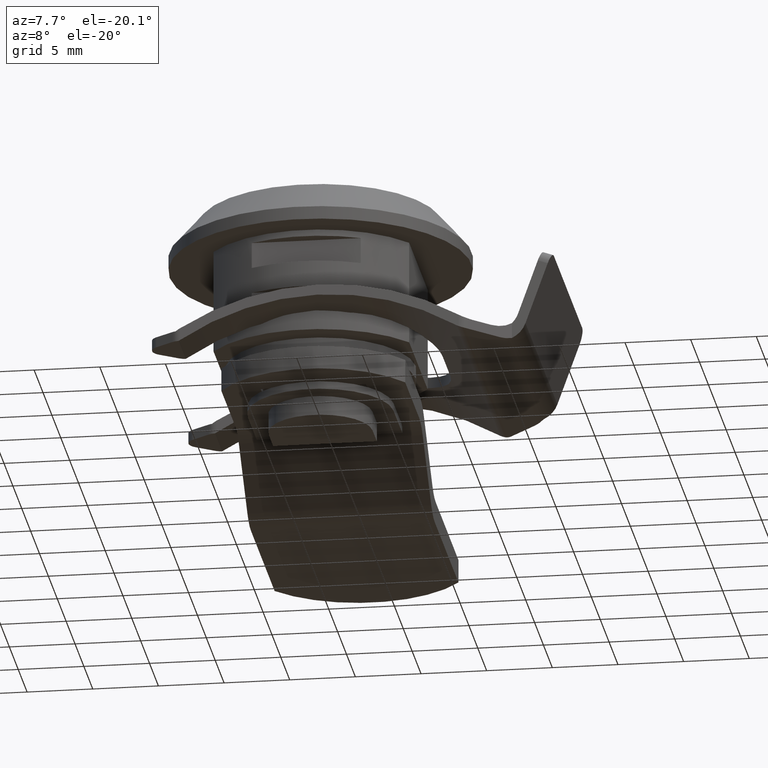
[diagram: clean part render]
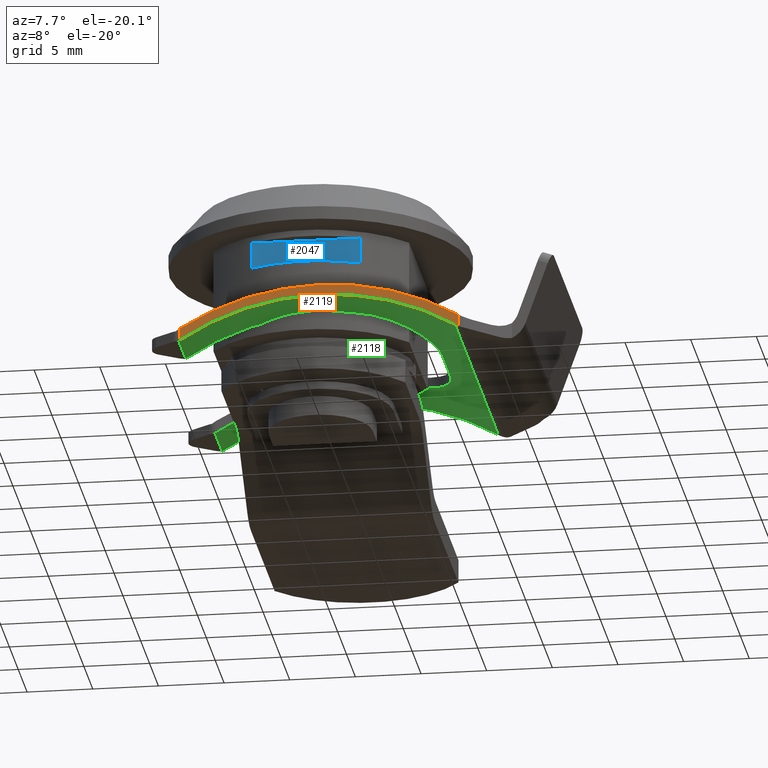
[diagram: same view with three faces highlighted in distinct colors, each labeled with its STEP entity id]
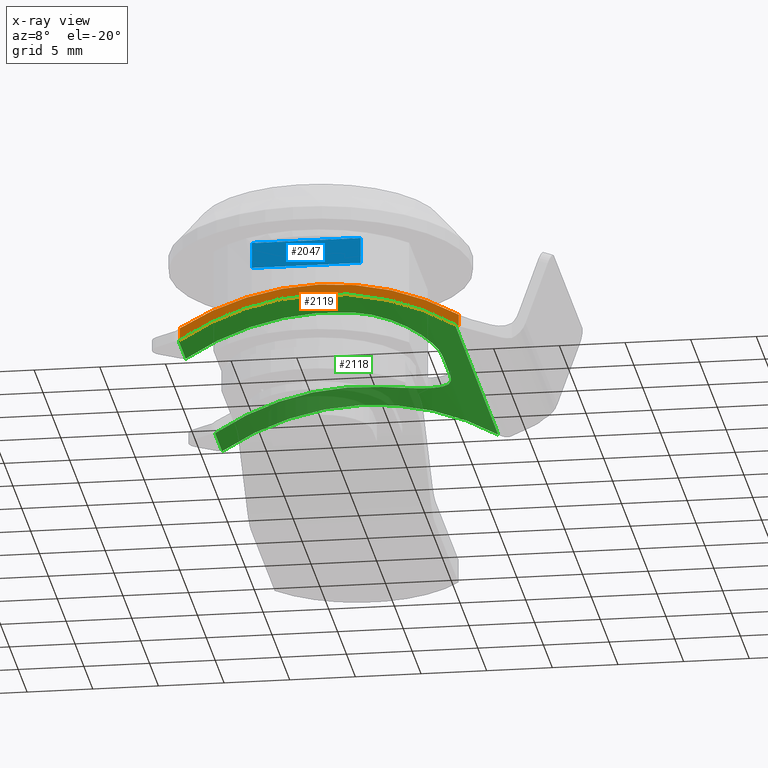
[diagram: x-ray of the same camera — body ghosted, the three highlighted faces saturated]
A machine part, auxiliary view with three faces highlighted in distinct colors.
The next image is the same camera in x-ray (body ghosted, the three faces saturated) — at least one of them is partly hidden behind the body in this view.
Their STEP definitions:

[orange] entity #2119 — the highlighted planar face has unit normal (0, 1, 0).
#203=FACE_OUTER_BOUND('',#340,.T.);
#340=EDGE_LOOP('',(#1748,#1749,#1750,#1751,#1752,#1753));
#522=LINE('',#3492,#719);
#523=LINE('',#3497,#720);
#719=VECTOR('',#2805,0.909079785206521);
#720=VECTOR('',#2810,0.944605690388034);
#819=CIRCLE('',#2295,2.);
#821=CIRCLE('',#2298,19.656640625);
#825=CIRCLE('',#2303,2.);
#826=CIRCLE('',#2304,20.456640625);
#982=VERTEX_POINT('',#3411);
#983=VERTEX_POINT('',#3420);
#986=VERTEX_POINT('',#3435);
#998=VERTEX_POINT('',#3491);
#999=VERTEX_POINT('',#3493);
#1000=VERTEX_POINT('',#3495);
#1244=EDGE_CURVE('',#982,#983,#819,.T.);
#1248=EDGE_CURVE('',#986,#983,#821,.T.);
#1261=EDGE_CURVE('',#998,#982,#522,.T.);
#1262=EDGE_CURVE('',#999,#998,#825,.T.);
#1263=EDGE_CURVE('',#1000,#999,#826,.T.);
#1264=EDGE_CURVE('',#986,#1000,#523,.T.);
#1748=ORIENTED_EDGE('',*,*,#1244,.F.);
#1749=ORIENTED_EDGE('',*,*,#1261,.F.);
#1750=ORIENTED_EDGE('',*,*,#1262,.F.);
#1751=ORIENTED_EDGE('',*,*,#1263,.F.);
#1752=ORIENTED_EDGE('',*,*,#1264,.F.);
#1753=ORIENTED_EDGE('',*,*,#1248,.T.);
#2015=PLANE('',#2302);
#2119=ADVANCED_FACE('',(#203),#2015,.F.);
#2295=AXIS2_PLACEMENT_3D('',#3421,#2785,#2786);
#2298=AXIS2_PLACEMENT_3D('',#3436,#2792,#2793);
#2302=AXIS2_PLACEMENT_3D('',#3490,#2803,#2804);
#2303=AXIS2_PLACEMENT_3D('',#3494,#2806,#2807);
#2304=AXIS2_PLACEMENT_3D('',#3496,#2808,#2809);
#2785=DIRECTION('center_axis',(-1.,0.,0.));
#2786=DIRECTION('ref_axis',(0.,-0.27180938406112,-0.962351109905483));
#2792=DIRECTION('center_axis',(-1.,0.,0.));
#2793=DIRECTION('ref_axis',(0.,0.546888972794658,0.837205142982055));
#2803=DIRECTION('center_axis',(-1.,0.,0.));
#2804=DIRECTION('ref_axis',(0.,0.,1.));
#2805=DIRECTION('',(0.,3.33066907387547E-16,-1.));
#2806=DIRECTION('center_axis',(1.,0.,0.));
#2807=DIRECTION('ref_axis',(0.,-0.266923983073512,-0.96371758687915));
#2808=DIRECTION('center_axis',(-1.,0.,0.));
#2809=DIRECTION('ref_axis',(0.,0.546888972794658,0.837205142982055));
#2810=DIRECTION('',(0.,0.,1.));
#3411=CARTESIAN_POINT('',(12.25,8.8168580611231,-3.34879565778853));
#3420=CARTESIAN_POINT('',(12.25,8.53341331073323,-3.20447863494526));
#3421=CARTESIAN_POINT('Origin',(12.25,9.57971756046901,-1.5));
#3435=CARTESIAN_POINT('',(12.25,-12.4117506519942,-3.44268913860213));
#3436=CARTESIAN_POINT('Origin',(12.25,-1.75,-19.956640625));
#3490=CARTESIAN_POINT('Origin',(12.25,11.,-3.5));
#3491=CARTESIAN_POINT('',(12.25,8.81685806112321,-2.43971587258201));
#3492=CARTESIAN_POINT('',(12.25,8.8168580611231,1.9));
#3493=CARTESIAN_POINT('',(12.25,8.77450533701655,-2.41500634904068));
#3494=CARTESIAN_POINT('Origin',(12.25,9.80346268440765,-0.699999999999998));
#3495=CARTESIAN_POINT('',(12.25,-12.4117506519942,-2.4980834482141));
#3496=CARTESIAN_POINT('Origin',(12.25,-1.75,-19.956640625));
#3497=CARTESIAN_POINT('',(12.25,-12.4117506519942,-3.1));

[blue] entity #2047 — the highlighted planar face has unit normal (0, 1, -0).
#131=FACE_OUTER_BOUND('',#251,.T.);
#251=EDGE_LOOP('',(#1380,#1381,#1382,#1383));
#390=LINE('',#3050,#587);
#391=LINE('',#3053,#588);
#392=LINE('',#3055,#589);
#393=LINE('',#3056,#590);
#587=VECTOR('',#2425,8.29457654133109);
#588=VECTOR('',#2428,2.);
#589=VECTOR('',#2429,8.29457654133109);
#590=VECTOR('',#2430,2.);
#863=VERTEX_POINT('',#3047);
#864=VERTEX_POINT('',#3048);
#865=VERTEX_POINT('',#3052);
#866=VERTEX_POINT('',#3054);
#1073=EDGE_CURVE('',#864,#863,#390,.T.);
#1074=EDGE_CURVE('',#865,#863,#391,.T.);
#1075=EDGE_CURVE('',#865,#866,#392,.T.);
#1076=EDGE_CURVE('',#864,#866,#393,.T.);
#1380=ORIENTED_EDGE('',*,*,#1074,.F.);
#1381=ORIENTED_EDGE('',*,*,#1075,.T.);
#1382=ORIENTED_EDGE('',*,*,#1076,.F.);
#1383=ORIENTED_EDGE('',*,*,#1073,.T.);
#1964=PLANE('',#2179);
#2047=ADVANCED_FACE('',(#131),#1964,.F.);
#2179=AXIS2_PLACEMENT_3D('',#3051,#2426,#2427);
#2425=DIRECTION('',(-1.,0.,0.));
#2426=DIRECTION('center_axis',(0.,1.,-5.55111512312579E-16));
#2427=DIRECTION('ref_axis',(0.,5.32907051820075E-16,1.));
#2428=DIRECTION('',(0.,0.,1.));
#2429=DIRECTION('',(1.,0.,0.));
#2430=DIRECTION('',(0.,0.,-1.));
#3047=CARTESIAN_POINT('',(-4.14728827066555,-8.1,-4.1));
#3048=CARTESIAN_POINT('',(4.14728827066555,-8.1,-4.1));
#3050=CARTESIAN_POINT('',(0.,-8.1,-4.1));
#3051=CARTESIAN_POINT('Origin',(0.,-8.1,-6.1));
#3052=CARTESIAN_POINT('',(-4.14728827066554,-8.1,-6.1));
#3053=CARTESIAN_POINT('',(-4.14728827066555,-8.1,-3.6));
#3054=CARTESIAN_POINT('',(4.14728827066554,-8.1,-6.1));
#3055=CARTESIAN_POINT('',(0.,-8.1,-6.1));
#3056=CARTESIAN_POINT('',(4.14728827066555,-8.1,-3.6));

[green] entity #2118 — the highlighted cylindrical surface (partial cylindrical patch) has radius 19.6566 mm, axis along (-0, -1, -0).
#29=B_SPLINE_CURVE_WITH_KNOTS('',3,(#3438,#3439,#3440,#3441),
 .UNSPECIFIED.,.F.,.F.,(4,4),(-0.174224091724001,-0.163853955412816),
 .UNSPECIFIED.);
#30=B_SPLINE_CURVE_WITH_KNOTS('',3,(#3445,#3446,#3447,#3448),
 .UNSPECIFIED.,.F.,.F.,(4,4),(0.163853955412815,0.174224091717286),
 .UNSPECIFIED.);
#31=B_SPLINE_CURVE_WITH_KNOTS('',3,(#3452,#3453,#3454,#3455,#3456,#3457,
#3458,#3459,#3460,#3461),.UNSPECIFIED.,.F.,.F.,(4,2,2,2,4),(-0.919602902519769,
-0.687858219705532,-0.456113536891296,-0.228056768445648,0.),
 .UNSPECIFIED.);
#32=B_SPLINE_CURVE_WITH_KNOTS('',3,(#3465,#3466,#3467,#3468,#3469,#3470,
#3471,#3472,#3473,#3474),.UNSPECIFIED.,.F.,.F.,(4,2,2,2,4),(-0.919602902519769,
-0.687858219705532,-0.456113536891296,-0.228056768445648,0.),
 .UNSPECIFIED.);
#33=B_SPLINE_CURVE_WITH_KNOTS('',3,(#3478,#3479,#3480,#3481),
 .UNSPECIFIED.,.F.,.F.,(4,4),(0.163853955412815,0.174224091717286),
 .UNSPECIFIED.);
#34=B_SPLINE_CURVE_WITH_KNOTS('',3,(#3485,#3486,#3487,#3488),
 .UNSPECIFIED.,.F.,.F.,(4,4),(-0.174224091724001,-0.163853955412816),
 .UNSPECIFIED.);
#102=CYLINDRICAL_SURFACE('',#2297,19.656640625);
#202=FACE_OUTER_BOUND('',#339,.T.);
#339=EDGE_LOOP('',(#1734,#1735,#1736,#1737,#1738,#1739,#1740,#1741,#1742,
#1743,#1744,#1745,#1746,#1747));
#518=LINE('',#3423,#715);
#519=LINE('',#3443,#716);
#520=LINE('',#3463,#717);
#521=LINE('',#3483,#718);
#715=VECTOR('',#2787,24.5);
#716=VECTOR('',#2794,3.99219683021186);
#717=VECTOR('',#2797,4.5);
#718=VECTOR('',#2800,3.99219683021186);
#821=CIRCLE('',#2298,19.656640625);
#822=CIRCLE('',#2299,19.656640625);
#823=CIRCLE('',#2300,19.656640625);
#824=CIRCLE('',#2301,19.656640625);
#983=VERTEX_POINT('',#3420);
#984=VERTEX_POINT('',#3422);
#986=VERTEX_POINT('',#3435);
#987=VERTEX_POINT('',#3437);
#988=VERTEX_POINT('',#3442);
#989=VERTEX_POINT('',#3444);
#990=VERTEX_POINT('',#3449);
#991=VERTEX_POINT('',#3451);
#992=VERTEX_POINT('',#3462);
#993=VERTEX_POINT('',#3464);
#994=VERTEX_POINT('',#3475);
#995=VERTEX_POINT('',#3477);
#996=VERTEX_POINT('',#3482);
#997=VERTEX_POINT('',#3484);
#1245=EDGE_CURVE('',#983,#984,#518,.T.);
#1248=EDGE_CURVE('',#986,#983,#821,.T.);
#1249=EDGE_CURVE('',#987,#986,#29,.T.);
#1250=EDGE_CURVE('',#988,#987,#519,.T.);
#1251=EDGE_CURVE('',#989,#988,#30,.T.);
#1252=EDGE_CURVE('',#989,#990,#822,.T.);
#1253=EDGE_CURVE('',#990,#991,#31,.T.);
#1254=EDGE_CURVE('',#991,#992,#520,.T.);
#1255=EDGE_CURVE('',#993,#992,#32,.T.);
#1256=EDGE_CURVE('',#994,#993,#823,.T.);
#1257=EDGE_CURVE('',#994,#995,#33,.T.);
#1258=EDGE_CURVE('',#995,#996,#521,.T.);
#1259=EDGE_CURVE('',#996,#997,#34,.T.);
#1260=EDGE_CURVE('',#997,#984,#824,.T.);
#1734=ORIENTED_EDGE('',*,*,#1245,.F.);
#1735=ORIENTED_EDGE('',*,*,#1248,.F.);
#1736=ORIENTED_EDGE('',*,*,#1249,.F.);
#1737=ORIENTED_EDGE('',*,*,#1250,.F.);
#1738=ORIENTED_EDGE('',*,*,#1251,.F.);
#1739=ORIENTED_EDGE('',*,*,#1252,.T.);
#1740=ORIENTED_EDGE('',*,*,#1253,.T.);
#1741=ORIENTED_EDGE('',*,*,#1254,.T.);
#1742=ORIENTED_EDGE('',*,*,#1255,.F.);
#1743=ORIENTED_EDGE('',*,*,#1256,.F.);
#1744=ORIENTED_EDGE('',*,*,#1257,.T.);
#1745=ORIENTED_EDGE('',*,*,#1258,.T.);
#1746=ORIENTED_EDGE('',*,*,#1259,.T.);
#1747=ORIENTED_EDGE('',*,*,#1260,.T.);
#2118=ADVANCED_FACE('',(#202),#102,.F.);
#2297=AXIS2_PLACEMENT_3D('',#3434,#2790,#2791);
#2298=AXIS2_PLACEMENT_3D('',#3436,#2792,#2793);
#2299=AXIS2_PLACEMENT_3D('',#3450,#2795,#2796);
#2300=AXIS2_PLACEMENT_3D('',#3476,#2798,#2799);
#2301=AXIS2_PLACEMENT_3D('',#3489,#2801,#2802);
#2787=DIRECTION('',(-1.,0.,0.));
#2790=DIRECTION('center_axis',(1.,0.,0.));
#2791=DIRECTION('ref_axis',(0.,0.546888972794658,0.837205142982055));
#2792=DIRECTION('center_axis',(-1.,0.,0.));
#2793=DIRECTION('ref_axis',(0.,0.546888972794658,0.837205142982055));
#2794=DIRECTION('',(1.,0.,0.));
#2795=DIRECTION('center_axis',(-1.,-8.55919339874696E-17,0.));
#2796=DIRECTION('ref_axis',(0.,0.546888972794658,0.837205142982055));
#2797=DIRECTION('',(-1.,0.,0.));
#2798=DIRECTION('center_axis',(-1.,8.55919339874696E-17,0.));
#2799=DIRECTION('ref_axis',(0.,0.546888972794658,0.837205142982055));
#2800=DIRECTION('',(-1.,0.,0.));
#2801=DIRECTION('center_axis',(-1.,0.,0.));
#2802=DIRECTION('ref_axis',(0.,0.546888972794658,0.837205142982055));
#3420=CARTESIAN_POINT('',(12.25,8.53341331073323,-3.20447863494526));
#3422=CARTESIAN_POINT('',(-12.25,8.53341331073323,-3.20447863494526));
#3423=CARTESIAN_POINT('',(0.,8.53341331073323,-3.20447863494526));
#3434=CARTESIAN_POINT('Origin',(0.,-1.75,-19.956640625));
#3435=CARTESIAN_POINT('',(12.25,-12.4117506519942,-3.44268913860213));
#3436=CARTESIAN_POINT('Origin',(12.25,-1.75,-19.956640625));
#3437=CARTESIAN_POINT('',(12.2460984151059,-12.5,-3.5));
#3438=CARTESIAN_POINT('Ctrl Pts',(12.2460984151059,-12.5,-3.5));
#3439=CARTESIAN_POINT('Ctrl Pts',(12.2487312829588,-12.4702819844606,-3.48058724898185));
#3440=CARTESIAN_POINT('Ctrl Pts',(12.25,-12.4407912073324,-3.46143832531657));
#3441=CARTESIAN_POINT('Ctrl Pts',(12.25,-12.4117506519942,-3.44268913860213));
#3442=CARTESIAN_POINT('',(8.25390158489407,-12.5,-3.5));
#3443=CARTESIAN_POINT('',(0.,-12.5,-3.5));
#3444=CARTESIAN_POINT('',(8.25,-12.4117506519942,-3.44268913860213));
#3445=CARTESIAN_POINT('Ctrl Pts',(8.25,-12.4117506519942,-3.44268913860213));
#3446=CARTESIAN_POINT('Ctrl Pts',(8.25,-12.4407912073136,-3.46143832530444));
#3447=CARTESIAN_POINT('Ctrl Pts',(8.25126871704006,-12.4702819844472,-3.48058724897309));
#3448=CARTESIAN_POINT('Ctrl Pts',(8.25390158489407,-12.5,-3.5));
#3449=CARTESIAN_POINT('',(8.25,0.235558702223562,-0.400539855663986));
#3450=CARTESIAN_POINT('Origin',(8.25,-1.75,-19.956640625));
#3451=CARTESIAN_POINT('',(2.25,6.23555870222356,-1.99517150708702));
#3452=CARTESIAN_POINT('Ctrl Pts',(8.25,0.23555870222356,-0.400539855663985));
#3453=CARTESIAN_POINT('Ctrl Pts',(8.25,1.0040898831669,-0.47856991862239));
#3454=CARTESIAN_POINT('Ctrl Pts',(8.09379713386992,1.81501469353767,-0.61109613465453));
#3455=CARTESIAN_POINT('Ctrl Pts',(7.47291328980313,3.2959217158456,-0.943537370734354));
#3456=CARTESIAN_POINT('Ctrl Pts',(7.00866283408578,3.96656156512839,-1.14132304163116));
#3457=CARTESIAN_POINT('Ctrl Pts',(5.94945499004977,5.01692249150636,-1.4933210632968));
#3458=CARTESIAN_POINT('Ctrl Pts',(5.28372048329495,5.47283809585431,-1.67213993201927));
#3459=CARTESIAN_POINT('Ctrl Pts',(3.81446889820531,6.08235141282781,-1.92481783253751));
#3460=CARTESIAN_POINT('Ctrl Pts',(3.01018922815216,6.23555870222356,-1.99517150708702));
#3461=CARTESIAN_POINT('Ctrl Pts',(2.25,6.23555870222356,-1.99517150708702));
#3462=CARTESIAN_POINT('',(-2.25,6.23555870222356,-1.99517150708702));
#3463=CARTESIAN_POINT('',(0.,6.23555870222356,-1.99517150708702));
#3464=CARTESIAN_POINT('',(-8.25,0.235558702223562,-0.400539855663986));
#3465=CARTESIAN_POINT('Ctrl Pts',(-8.25,0.23555870222356,-0.400539855663985));
#3466=CARTESIAN_POINT('Ctrl Pts',(-8.25,1.0040898831669,-0.47856991862239));
#3467=CARTESIAN_POINT('Ctrl Pts',(-8.09379713386992,1.81501469353767,-0.61109613465453));
#3468=CARTESIAN_POINT('Ctrl Pts',(-7.47291328980313,3.2959217158456,-0.943537370734354));
#3469=CARTESIAN_POINT('Ctrl Pts',(-7.00866283408578,3.96656156512839,-1.14132304163116));
#3470=CARTESIAN_POINT('Ctrl Pts',(-5.94945499004977,5.01692249150636,-1.4933210632968));
#3471=CARTESIAN_POINT('Ctrl Pts',(-5.28372048329495,5.47283809585431,-1.67213993201927));
#3472=CARTESIAN_POINT('Ctrl Pts',(-3.81446889820531,6.08235141282781,-1.92481783253751));
#3473=CARTESIAN_POINT('Ctrl Pts',(-3.01018922815216,6.23555870222356,-1.99517150708702));
#3474=CARTESIAN_POINT('Ctrl Pts',(-2.25,6.23555870222356,-1.99517150708702));
#3475=CARTESIAN_POINT('',(-8.25,-12.4117506519942,-3.44268913860213));
#3476=CARTESIAN_POINT('Origin',(-8.25,-1.75,-19.956640625));
#3477=CARTESIAN_POINT('',(-8.25390158489407,-12.5,-3.5));
#3478=CARTESIAN_POINT('Ctrl Pts',(-8.25,-12.4117506519942,-3.44268913860213));
#3479=CARTESIAN_POINT('Ctrl Pts',(-8.25,-12.4407912073136,-3.46143832530444));
#3480=CARTESIAN_POINT('Ctrl Pts',(-8.25126871704006,-12.4702819844472,-3.48058724897309));
#3481=CARTESIAN_POINT('Ctrl Pts',(-8.25390158489407,-12.5,-3.5));
#3482=CARTESIAN_POINT('',(-12.2460984151059,-12.5,-3.5));
#3483=CARTESIAN_POINT('',(0.,-12.5,-3.5));
#3484=CARTESIAN_POINT('',(-12.25,-12.4117506519942,-3.44268913860213));
#3485=CARTESIAN_POINT('Ctrl Pts',(-12.2460984151059,-12.5,-3.5));
#3486=CARTESIAN_POINT('Ctrl Pts',(-12.2487312829588,-12.4702819844606,-3.48058724898185));
#3487=CARTESIAN_POINT('Ctrl Pts',(-12.25,-12.4407912073324,-3.46143832531657));
#3488=CARTESIAN_POINT('Ctrl Pts',(-12.25,-12.4117506519942,-3.44268913860213));
#3489=CARTESIAN_POINT('Origin',(-12.25,-1.75,-19.956640625));